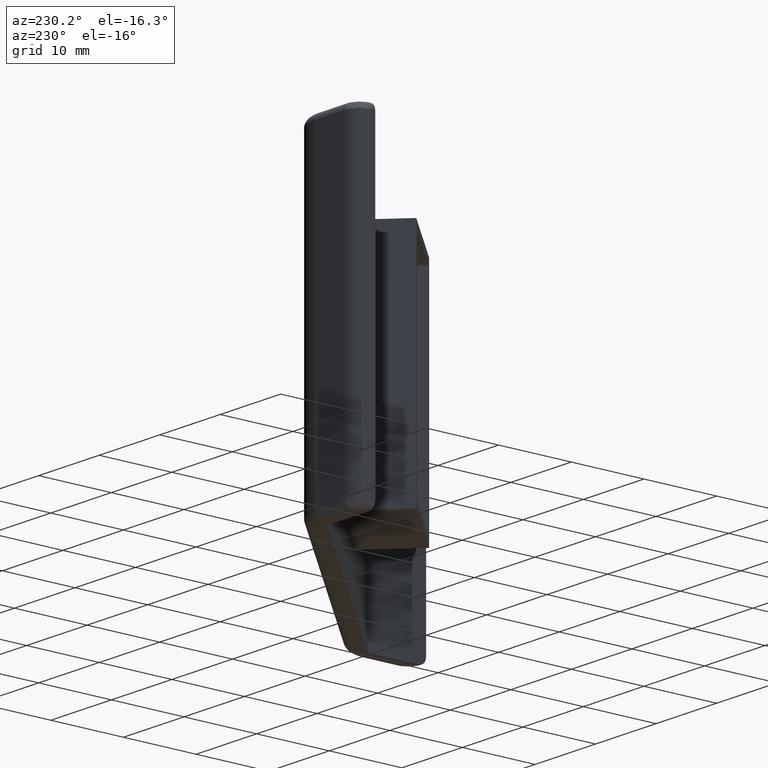
[diagram: clean part render]
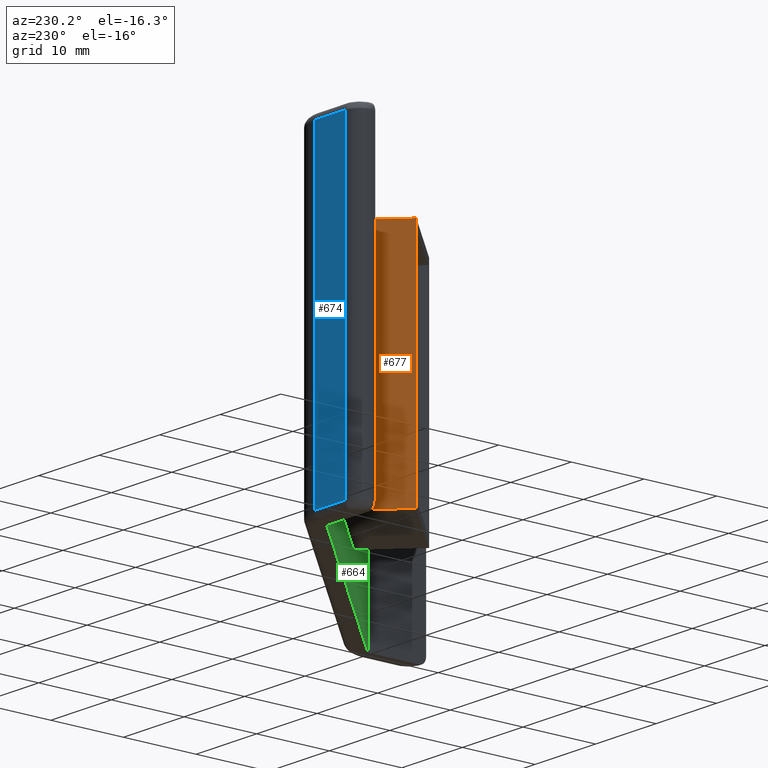
[diagram: same view with three faces highlighted in distinct colors, each labeled with its STEP entity id]
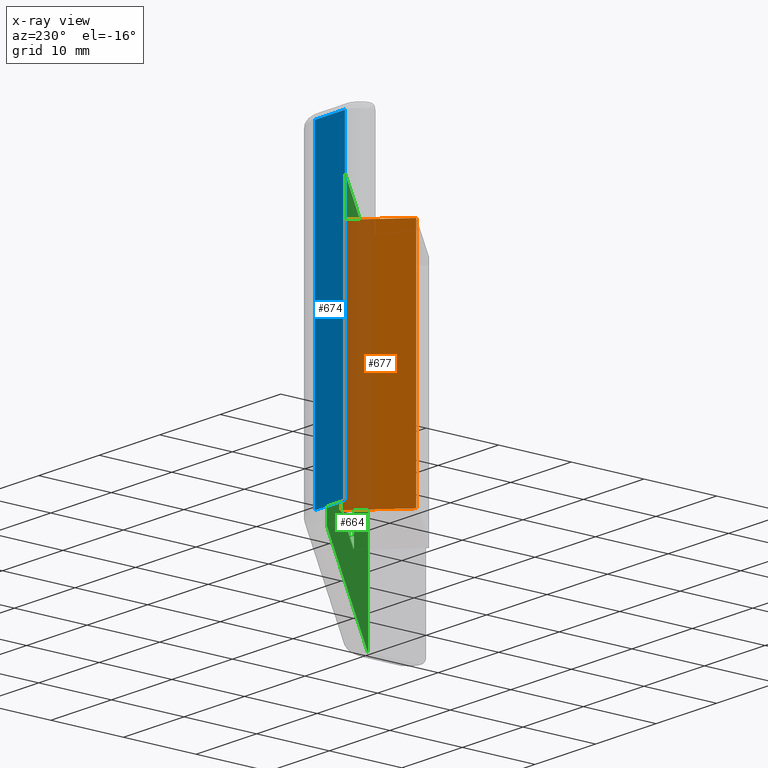
[diagram: x-ray of the same camera — body ghosted, the three highlighted faces saturated]
A machine part, auxiliary view with three faces highlighted in distinct colors.
The next image is the same camera in x-ray (body ghosted, the three faces saturated) — at least one of them is partly hidden behind the body in this view.
Their STEP definitions:

[orange] entity #677 — the highlighted planar face has unit normal (0.7071, -0.7071, 0).
#57=FACE_OUTER_BOUND('',#100,.T.);
#100=EDGE_LOOP('',(#530,#531,#532,#533));
#147=LINE('',#1050,#209);
#180=LINE('',#1134,#242);
#181=LINE('',#1136,#243);
#182=LINE('',#1137,#244);
#209=VECTOR('',#823,32.);
#242=VECTOR('',#898,8.);
#243=VECTOR('',#899,32.);
#244=VECTOR('',#900,8.);
#312=VERTEX_POINT('',#1046);
#314=VERTEX_POINT('',#1049);
#344=VERTEX_POINT('',#1133);
#345=VERTEX_POINT('',#1135);
#375=EDGE_CURVE('',#314,#312,#147,.T.);
#416=EDGE_CURVE('',#344,#312,#180,.T.);
#417=EDGE_CURVE('',#345,#344,#181,.T.);
#418=EDGE_CURVE('',#345,#314,#182,.T.);
#530=ORIENTED_EDGE('',*,*,#375,.T.);
#531=ORIENTED_EDGE('',*,*,#416,.F.);
#532=ORIENTED_EDGE('',*,*,#417,.F.);
#533=ORIENTED_EDGE('',*,*,#418,.T.);
#655=PLANE('',#737);
#677=ADVANCED_FACE('',(#57),#655,.F.);
#737=AXIS2_PLACEMENT_3D('',#1132,#896,#897);
#823=DIRECTION('',(0.,0.,-1.));
#896=DIRECTION('center_axis',(0.707106781186547,-0.707106781186548,0.));
#897=DIRECTION('ref_axis',(0.707106781186548,0.707106781186547,0.));
#898=DIRECTION('',(0.707106781186548,0.707106781186547,0.));
#899=DIRECTION('',(0.,0.,-1.));
#900=DIRECTION('',(0.707106781186548,0.707106781186547,0.));
#1046=CARTESIAN_POINT('',(19.6966991411009,30.3033008588991,-16.));
#1049=CARTESIAN_POINT('',(19.6966991411009,30.3033008588991,16.));
#1050=CARTESIAN_POINT('',(19.6966991411009,30.3033008588991,14.5));
#1132=CARTESIAN_POINT('Origin',(14.0398448916085,24.6464466094067,14.5));
#1133=CARTESIAN_POINT('',(14.0398448916085,24.6464466094067,-16.));
#1134=CARTESIAN_POINT('',(14.0398448916085,24.6464466094067,-16.));
#1135=CARTESIAN_POINT('',(14.0398448916085,24.6464466094067,16.));
#1136=CARTESIAN_POINT('',(14.0398448916085,24.6464466094067,14.5));
#1137=CARTESIAN_POINT('',(14.0398448916085,24.6464466094067,16.));

[blue] entity #674 — the highlighted planar face has unit normal (0, -1, 0).
#54=FACE_OUTER_BOUND('',#97,.T.);
#97=EDGE_LOOP('',(#518,#519,#520,#521));
#176=LINE('',#1120,#238);
#177=LINE('',#1122,#239);
#178=LINE('',#1124,#240);
#179=LINE('',#1125,#241);
#238=VECTOR('',#880,4.96446609406727);
#239=VECTOR('',#881,43.);
#240=VECTOR('',#882,4.96446609406727);
#241=VECTOR('',#883,43.);
#340=VERTEX_POINT('',#1118);
#341=VERTEX_POINT('',#1119);
#342=VERTEX_POINT('',#1121);
#343=VERTEX_POINT('',#1123);
#408=EDGE_CURVE('',#340,#341,#176,.T.);
#409=EDGE_CURVE('',#341,#342,#177,.T.);
#410=EDGE_CURVE('',#342,#343,#178,.T.);
#411=EDGE_CURVE('',#343,#340,#179,.T.);
#518=ORIENTED_EDGE('',*,*,#408,.T.);
#519=ORIENTED_EDGE('',*,*,#409,.T.);
#520=ORIENTED_EDGE('',*,*,#410,.T.);
#521=ORIENTED_EDGE('',*,*,#411,.T.);
#654=PLANE('',#730);
#674=ADVANCED_FACE('',(#54),#654,.F.);
#730=AXIS2_PLACEMENT_3D('',#1117,#878,#879);
#878=DIRECTION('center_axis',(0.,-1.,0.));
#879=DIRECTION('ref_axis',(0.,0.,-1.));
#880=DIRECTION('',(1.,0.,0.));
#881=DIRECTION('',(0.,0.,-1.));
#882=DIRECTION('',(-1.,0.,0.));
#883=DIRECTION('',(0.,0.,1.));
#1117=CARTESIAN_POINT('Origin',(9.03553390593274,44.5,22.5));
#1118=CARTESIAN_POINT('',(2.,44.5,21.5));
#1119=CARTESIAN_POINT('',(6.96446609406727,44.5,21.5));
#1120=CARTESIAN_POINT('',(9.03553390593274,44.5,21.5));
#1121=CARTESIAN_POINT('',(6.96446609406727,44.5,-21.5));
#1122=CARTESIAN_POINT('',(6.96446609406727,44.5,22.5));
#1123=CARTESIAN_POINT('',(2.,44.5,-21.5));
#1124=CARTESIAN_POINT('',(9.03553390593274,44.5,-21.5));
#1125=CARTESIAN_POINT('',(2.,44.5,22.5));

[green] entity #664 — the highlighted planar face has unit normal (0.7071, 0.7071, 0).
#40=FACE_BOUND('',#87,.T.);
#44=FACE_OUTER_BOUND('',#86,.T.);
#86=EDGE_LOOP('',(#470,#471,#472,#473));
#87=EDGE_LOOP('',(#474,#475,#476,#477));
#131=LINE('',#1006,#193);
#140=LINE('',#1035,#202);
#144=LINE('',#1044,#206);
#145=LINE('',#1045,#207);
#146=LINE('',#1048,#208);
#147=LINE('',#1050,#209);
#148=LINE('',#1052,#210);
#149=LINE('',#1053,#211);
#193=VECTOR('',#791,48.0832611206852);
#202=VECTOR('',#812,48.0832611206852);
#206=VECTOR('',#820,45.);
#207=VECTOR('',#821,45.);
#208=VECTOR('',#822,15.);
#209=VECTOR('',#823,32.);
#210=VECTOR('',#824,15.);
#211=VECTOR('',#825,32.);
#293=VERTEX_POINT('',#1003);
#294=VERTEX_POINT('',#1005);
#307=VERTEX_POINT('',#1032);
#308=VERTEX_POINT('',#1034);
#312=VERTEX_POINT('',#1046);
#313=VERTEX_POINT('',#1047);
#314=VERTEX_POINT('',#1049);
#315=VERTEX_POINT('',#1051);
#353=EDGE_CURVE('',#293,#294,#131,.T.);
#367=EDGE_CURVE('',#308,#307,#140,.T.);
#372=EDGE_CURVE('',#294,#307,#144,.T.);
#373=EDGE_CURVE('',#293,#308,#145,.T.);
#374=EDGE_CURVE('',#312,#313,#146,.T.);
#375=EDGE_CURVE('',#314,#312,#147,.T.);
#376=EDGE_CURVE('',#315,#314,#148,.T.);
#377=EDGE_CURVE('',#313,#315,#149,.T.);
#470=ORIENTED_EDGE('',*,*,#367,.T.);
#471=ORIENTED_EDGE('',*,*,#372,.F.);
#472=ORIENTED_EDGE('',*,*,#353,.F.);
#473=ORIENTED_EDGE('',*,*,#373,.T.);
#474=ORIENTED_EDGE('',*,*,#374,.F.);
#475=ORIENTED_EDGE('',*,*,#375,.F.);
#476=ORIENTED_EDGE('',*,*,#376,.F.);
#477=ORIENTED_EDGE('',*,*,#377,.F.);
#644=PLANE('',#716);
#664=ADVANCED_FACE('',(#44,#40),#644,.F.);
#716=AXIS2_PLACEMENT_3D('',#1043,#818,#819);
#791=DIRECTION('',(0.707106781186547,-0.707106781186547,0.));
#812=DIRECTION('',(0.707106781186547,-0.707106781186547,0.));
#818=DIRECTION('center_axis',(0.707106781186548,0.707106781186548,0.));
#819=DIRECTION('ref_axis',(-0.707106781186548,0.707106781186547,0.));
#820=DIRECTION('',(0.,0.,-1.));
#821=DIRECTION('',(0.,0.,-1.));
#822=DIRECTION('',(0.707106781186547,-0.707106781186548,0.));
#823=DIRECTION('',(0.,0.,-1.));
#824=DIRECTION('',(-0.707106781186547,0.707106781186548,0.));
#825=DIRECTION('',(0.,0.,1.));
#1003=CARTESIAN_POINT('',(8.,42.,22.5));
#1005=CARTESIAN_POINT('',(42.,8.,22.5));
#1006=CARTESIAN_POINT('',(8.,42.,22.5));
#1032=CARTESIAN_POINT('',(42.,8.,-22.5));
#1034=CARTESIAN_POINT('',(8.,42.,-22.5));
#1035=CARTESIAN_POINT('',(8.,42.,-22.5));
#1043=CARTESIAN_POINT('Origin',(8.,42.,22.5));
#1044=CARTESIAN_POINT('',(42.,8.,22.5));
#1045=CARTESIAN_POINT('',(8.,42.,22.5));
#1046=CARTESIAN_POINT('',(19.6966991411009,30.3033008588991,-16.));
#1047=CARTESIAN_POINT('',(30.3033008588991,19.6966991411009,-16.));
#1048=CARTESIAN_POINT('',(19.6966991411009,30.3033008588991,-16.));
#1049=CARTESIAN_POINT('',(19.6966991411009,30.3033008588991,16.));
#1050=CARTESIAN_POINT('',(19.6966991411009,30.3033008588991,14.5));
#1051=CARTESIAN_POINT('',(30.3033008588991,19.6966991411009,16.));
#1052=CARTESIAN_POINT('',(19.6966991411009,30.3033008588991,16.));
#1053=CARTESIAN_POINT('',(30.3033008588991,19.6966991411009,14.5));